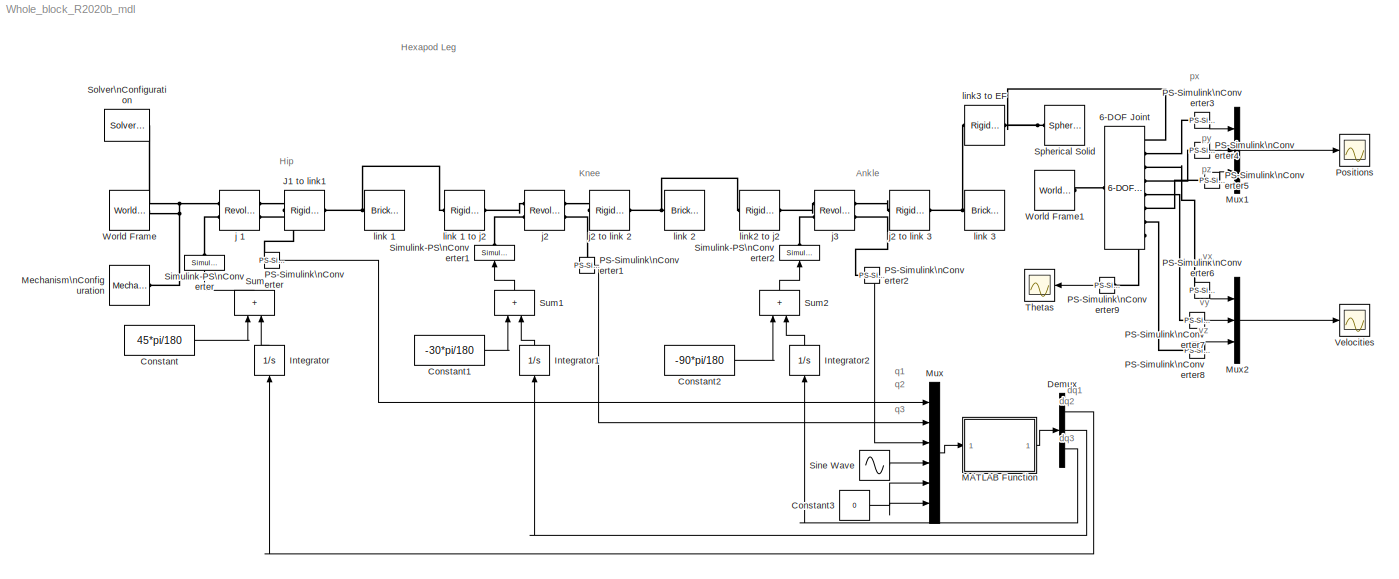
MODEL Whole_block_R2020b_mdl
KIND model
BLOCK [Reference] 6-DOF Joint  REF=sm_lib/Joints/6-DOF Joint
  CompositeWrenchDir = FollowerOnBase
  CompositeWrenchFrame = BaseFrame
  JointMode = Normal
  LogSimulationData = off
  Ports = [0, 0, 0, 0, 0, 1, 8]
  PxDampingCoefficient = 0
  PxDampingCoefficientUnits = N/(m/s)
  PxDampingCoefficient_conf = compiletime
  PxEquilibriumPosition = 0
  PxEquilibriumPositionUnits = m
  PxEquilibriumPosition_conf = compiletime
  PxLowerLimitBound = -1
  PxLowerLimitBoundUnits = m
  PxLowerLimitBound_conf = compiletime
  PxLowerLimitDamping = 1e3
  PxLowerLimitDampingUnits = N/(m/s)
  PxLowerLimitDamping_conf = compiletime
  PxLowerLimitSpecify = off
  PxLowerLimitStiffness = 1e6
  PxLowerLimitStiffnessUnits = N/m
  PxLowerLimitStiffness_conf = compiletime
  PxLowerLimitTransitionRegionWidth = 1e-4
  PxLowerLimitTransitionRegionWidthUnits = m
  PxLowerLimitTransitionRegionWidth_conf = compiletime
  PxMotionActuationMode = ComputedMotion
  PxPositionTargetPriority = High
  PxPositionTargetSpecify = off
  PxPositionTargetValue = 0
  PxPositionTargetValueUnits = m
  PxPositionTargetValue_conf = compiletime
  PxSenseAcceleration = off
  PxSenseLowerLimitTorqueForce = off
  PxSensePosition = on
  PxSenseTorqueForce = off
  PxSenseUpperLimitTorqueForce = off
  PxSenseVelocity = on
  PxSpringStiffness = 0
  PxSpringStiffnessUnits = N/m
  PxSpringStiffness_conf = compiletime
  PxTorqueActuationMode = NoTorque
  PxUpperLimitBound = 1
  PxUpperLimitBoundUnits = m
  PxUpperLimitBound_conf = compiletime
  PxUpperLimitDamping = 1e3
  PxUpperLimitDampingUnits = N/(m/s)
  PxUpperLimitDamping_conf = compiletime
  PxUpperLimitSpecify = off
  PxUpperLimitStiffness = 1e6
  PxUpperLimitStiffnessUnits = N/m
  PxUpperLimitStiffness_conf = compiletime
  PxUpperLimitTransitionRegionWidth = 1e-4
  PxUpperLimitTransitionRegionWidthUnits = m
  PxUpperLimitTransitionRegionWidth_conf = compiletime
  PxVelocityTargetPriority = High
  PxVelocityTargetSpecify = off
  PxVelocityTargetValue = 0
  PxVelocityTargetValueUnits = m/s
  PxVelocityTargetValue_conf = compiletime
  PyDampingCoefficient = 0
  PyDampingCoefficientUnits = N/(m/s)
  PyDampingCoefficient_conf = compiletime
  PyEquilibriumPosition = 0
  PyEquilibriumPositionUnits = m
  PyEquilibriumPosition_conf = compiletime
  PyLowerLimitBound = -1
  PyLowerLimitBoundUnits = m
  PyLowerLimitBound_conf = compiletime
  PyLowerLimitDamping = 1e3
  PyLowerLimitDampingUnits = N/(m/s)
  PyLowerLimitDamping_conf = compiletime
  PyLowerLimitSpecify = off
  PyLowerLimitStiffness = 1e6
  PyLowerLimitStiffnessUnits = N/m
  PyLowerLimitStiffness_conf = compiletime
  PyLowerLimitTransitionRegionWidth = 1e-4
  PyLowerLimitTransitionRegionWidthUnits = m
  PyLowerLimitTransitionRegionWidth_conf = compiletime
  PyMotionActuationMode = ComputedMotion
  PyPositionTargetPriority = High
  PyPositionTargetSpecify = off
  PyPositionTargetValue = 0
  PyPositionTargetValueUnits = m
  PyPositionTargetValue_conf = compiletime
  PySenseAcceleration = off
  PySenseLowerLimitTorqueForce = off
  PySensePosition = on
  PySenseTorqueForce = off
  PySenseUpperLimitTorqueForce = off
  PySenseVelocity = on
  PySpringStiffness = 0
  PySpringStiffnessUnits = N/m
  PySpringStiffness_conf = compiletime
  PyTorqueActuationMode = NoTorque
  PyUpperLimitBound = 1
  PyUpperLimitBoundUnits = m
  PyUpperLimitBound_conf = compiletime
  PyUpperLimitDamping = 1e3
  PyUpperLimitDampingUnits = N/(m/s)
  PyUpperLimitDamping_conf = compiletime
  PyUpperLimitSpecify = off
  PyUpperLimitStiffness = 1e6
  PyUpperLimitStiffnessUnits = N/m
  PyUpperLimitStiffness_conf = compiletime
  PyUpperLimitTransitionRegionWidth = 1e-4
  PyUpperLimitTransitionRegionWidthUnits = m
  PyUpperLimitTransitionRegionWidth_conf = compiletime
  PyVelocityTargetPriority = High
  PyVelocityTargetSpecify = off
  PyVelocityTargetValue = 0
  PyVelocityTargetValueUnits = m/s
  PyVelocityTargetValue_conf = compiletime
  PzDampingCoefficient = 0
  PzDampingCoefficientUnits = N/(m/s)
  PzDampingCoefficient_conf = compiletime
  PzEquilibriumPosition = 0
  PzEquilibriumPositionUnits = m
  PzEquilibriumPosition_conf = compiletime
  PzLowerLimitBound = -1
  PzLowerLimitBoundUnits = m
  PzLowerLimitBound_conf = compiletime
  PzLowerLimitDamping = 1e3
  PzLowerLimitDampingUnits = N/(m/s)
  PzLowerLimitDamping_conf = compiletime
  PzLowerLimitSpecify = off
  PzLowerLimitStiffness = 1e6
  PzLowerLimitStiffnessUnits = N/m
  PzLowerLimitStiffness_conf = compiletime
  PzLowerLimitTransitionRegionWidth = 1e-4
  PzLowerLimitTransitionRegionWidthUnits = m
  PzLowerLimitTransitionRegionWidth_conf = compiletime
  PzMotionActuationMode = ComputedMotion
  PzPositionTargetPriority = High
  PzPositionTargetSpecify = off
  PzPositionTargetValue = 0
  PzPositionTargetValueUnits = m
  PzPositionTargetValue_conf = compiletime
  PzSenseAcceleration = off
  PzSenseLowerLimitTorqueForce = off
  PzSensePosition = on
  PzSenseTorqueForce = off
  PzSenseUpperLimitTorqueForce = off
  PzSenseVelocity = on
  PzSpringStiffness = 0
  PzSpringStiffnessUnits = N/m
  PzSpringStiffness_conf = compiletime
  PzTorqueActuationMode = NoTorque
  PzUpperLimitBound = 1
  PzUpperLimitBoundUnits = m
  PzUpperLimitBound_conf = compiletime
  PzUpperLimitDamping = 1e3
  PzUpperLimitDampingUnits = N/(m/s)
  PzUpperLimitDamping_conf = compiletime
  PzUpperLimitSpecify = off
  PzUpperLimitStiffness = 1e6
  PzUpperLimitStiffnessUnits = N/m
  PzUpperLimitStiffness_conf = compiletime
  PzUpperLimitTransitionRegionWidth = 1e-4
  PzUpperLimitTransitionRegionWidthUnits = m
  PzUpperLimitTransitionRegionWidth_conf = compiletime
  PzVelocityTargetPriority = High
  PzVelocityTargetSpecify = off
  PzVelocityTargetValue = 0
  PzVelocityTargetValueUnits = m/s
  PzVelocityTargetValue_conf = compiletime
  SID = 114
  SenseConstraintForce = off
  SenseConstraintForceX = off
  SenseConstraintForceY = off
  SenseConstraintForceZ = off
  SenseConstraintTorque = off
  SenseConstraintTorqueX = off
  SenseConstraintTorqueY = off
  SenseConstraintTorqueZ = off
  SenseTotalForce = off
  SenseTotalForceX = off
  SenseTotalForceY = off
  SenseTotalForceZ = off
  SenseTotalTorque = off
  SenseTotalTorqueX = off
  SenseTotalTorqueY = off
  SenseTotalTorqueZ = off
  SourceBlock = sm_lib/Joints/6-DOF Joint
  SourceType = 6-DOF Joint
  SphActuateTorque = off
  SphActuateTorqueX = off
  SphActuateTorqueY = off
  SphActuateTorqueZ = off
  SphActuationFrame = BaseFrame
  SphDampingCoefficient = 0
  SphDampingCoefficientUnits = N*m/(deg/s)
  SphDampingCoefficient_conf = compiletime
  SphEqPosBaseAlignAxisA = +Y
  SphEqPosBaseAlignAxisB = +Z
  SphEqPosFollAlignAxisA = +X
  SphEqPosFollAlignAxisB = +Y
  SphEqPosQuaternion = [1 0 0 0]
  SphEqPosQuaternion_conf = compiletime
  SphEqPosRotationAngle = 0.0
  SphEqPosRotationAngleUnits = deg
  SphEqPosRotationAngle_conf = compiletime
  SphEqPosRotationArbitraryAxis = [0 0 1]
  SphEqPosRotationArbitraryAxis_conf = compiletime
  SphEqPosRotationMatrix = [1 0 0; 0 1 0; 0 0 1]
  SphEqPosRotationMatrix_conf = compiletime
  SphEqPosRotationMethod = None
  SphEqPosRotationSequence = XYX
  SphEqPosRotationSequenceAngles = [0 0 0]
  SphEqPosRotationSequenceAnglesUnits = deg
  SphEqPosRotationSequenceAngles_conf = compiletime
  SphEqPosRotationSequenceAxes = FollowerAxes
  SphEqPosRotationStandardAxis = +Z
  SphLowerLimitBound = 15
  SphLowerLimitBoundUnits = deg
  SphLowerLimitBound_conf = compiletime
  SphLowerLimitDamping = 10
  SphLowerLimitDampingUnits = N*m/(deg/s)
  SphLowerLimitDamping_conf = compiletime
  SphLowerLimitSpecify = off
  SphLowerLimitStiffness = 1e4
  SphLowerLimitStiffnessUnits = N*m/deg
  SphLowerLimitStiffness_conf = compiletime
  SphLowerLimitTransitionRegionWidth = 0.1
  SphLowerLimitTransitionRegionWidthUnits = deg
  SphLowerLimitTransitionRegionWidth_conf = compiletime
  SphMotionActuationMode = ComputedMotion
  SphPositionTargetBaseAlignAxisA = +Y
  SphPositionTargetBaseAlignAxisB = +Z
  SphPositionTargetFollAlignAxisA = +X
  SphPositionTargetFollAlignAxisB = +Y
  SphPositionTargetPriority = High
  SphPositionTargetQuaternion = [1 0 0 0]
  SphPositionTargetQuaternion_conf = compiletime
  SphPositionTargetRotationAngle = 0.0
  SphPositionTargetRotationAngleUnits = deg
  SphPositionTargetRotationAngle_conf = compiletime
  SphPositionTargetRotationArbitraryAxis = [0 0 1]
  SphPositionTargetRotationArbitraryAxis_conf = compiletime
  SphPositionTargetRotationMatrix = [1 0 0; 0 1 0; 0 0 1]
  SphPositionTargetRotationMatrix_conf = compiletime
  SphPositionTargetRotationMethod = None
  SphPositionTargetRotationSequence = XYX
  SphPositionTargetRotationSequenceAngles = [0 0 0]
  SphPositionTargetRotationSequenceAnglesUnits = deg
  SphPositionTargetRotationSequenceAngles_conf = compiletime
  SphPositionTargetRotationSequenceAxes = FollowerAxes
  SphPositionTargetRotationStandardAxis = +Z
  SphPositionTargetSpecify = off
  SphSenseAcceleration = off
  SphSenseAccelerationX = off
  SphSenseAccelerationY = off
  SphSenseAccelerationZ = off
  SphSenseLowerLimitTorqueMag = off
  SphSensePosition = on
  SphSenseTorqueForce = off
  SphSenseTorqueX = off
  SphSenseTorqueY = off
  SphSenseTorqueZ = off
  SphSenseUpperLimitTorqueMag = off
  SphSenseVelocity = off
  SphSenseVelocityX = off
  SphSenseVelocityY = off
  SphSenseVelocityZ = off
  SphSensingFrame = BaseFrame
  SphSpringStiffness = 0
  SphSpringStiffnessUnits = N*m/deg
  SphSpringStiffness_conf = compiletime
  SphTorqueActuationMode = NoTorque
  SphUpperLimitBound = 45
  SphUpperLimitBoundUnits = deg
  SphUpperLimitBound_conf = compiletime
  SphUpperLimitDamping = 10
  SphUpperLimitDampingUnits = N*m/(deg/s)
  SphUpperLimitDamping_conf = compiletime
  SphUpperLimitSpecify = off
  SphUpperLimitStiffness = 1e4
  SphUpperLimitStiffnessUnits = N*m/deg
  SphUpperLimitStiffness_conf = compiletime
  SphUpperLimitTransitionRegionWidth = 0.1
  SphUpperLimitTransitionRegionWidthUnits = deg
  SphUpperLimitTransitionRegionWidth_conf = compiletime
  SphVelocityTargetInFollowerFrame = on
  SphVelocityTargetPriority = High
  SphVelocityTargetSpecify = off
  SphVelocityTargetValue = [0 0 0]
  SphVelocityTargetValueUnits = deg/s
  SphVelocityTargetValue_conf = compiletime
BLOCK [Constant] Constant
  SID = 115
  Value = 45*pi/180
BLOCK [Constant] Constant1
  SID = 116
  Value = -30*pi/180
BLOCK [Constant] Constant2
  SID = 117
  Value = -90*pi/180
BLOCK [Constant] Constant3
  SID = 118
  Value = 0
BLOCK [Demux] Demux
  Outputs = 3
  Ports = [1, 3]
  SID = 119
BLOCK [Integrator] Integrator
  NameLocation = right
  Ports = [1, 1]
  SID = 120
BLOCK [Integrator] Integrator1
  NameLocation = right
  Ports = [1, 1]
  SID = 121
BLOCK [Integrator] Integrator2
  NameLocation = right
  Ports = [1, 1]
  SID = 122
BLOCK [Reference] J1 to link1  REF=sm_lib/Frames and\nTransforms/Rigid\nTransform
  BaseAlignAxisA = +Y
  BaseAlignAxisB = +Z
  FollAlignAxisA = +X
  FollAlignAxisB = +Y
  LogSimulationData = off
  Ports = [0, 0, 0, 0, 0, 1, 1]
  Quaternion = [1 0 0 0]
  Quaternion_conf = compiletime
  RotationAngle = 0.0
  RotationAngleUnits = deg
  RotationAngle_conf = compiletime
  RotationArbitraryAxis = [0 0 1]
  RotationArbitraryAxis_conf = compiletime
  RotationMatrix = [1 0 0; 0 1 0; 0 0 1]
  RotationMatrix_conf = compiletime
  RotationMethod = None
  RotationSequence = XYX
  RotationSequenceAngles = [0 0 0]
  RotationSequenceAnglesUnits = deg
  RotationSequenceAngles_conf = compiletime
  RotationSequenceAxes = FollowerAxes
  RotationStandardAxis = +Z
  SID = 123
  SourceBlock = sm_lib/Frames and\nTransforms/Rigid\nTransform
  SourceType = Rigid\nTransform
  TranslationCartesianOffset = [.025 0 0]
  TranslationCartesianOffsetUnits = m
  TranslationCartesianOffset_conf = compiletime
  TranslationMethod = Cartesian
  TranslationROffset = 0
  TranslationROffsetUnits = m
  TranslationROffset_conf = compiletime
  TranslationStandardAxis = +Z
  TranslationStandardOffset = 0
  TranslationStandardOffsetUnits = m
  TranslationStandardOffset_conf = compiletime
  TranslationThetaOffset = 0
  TranslationThetaOffsetUnits = deg
  TranslationThetaOffset_conf = compiletime
  TranslationZOffset = 0
  TranslationZOffsetUnits = m
  TranslationZOffset_conf = compiletime
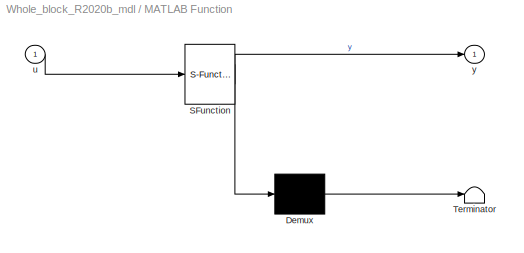
BLOCK [SubSystem] MATLAB Function
  ErrorFcn = Stateflow.Translate.translate
  PermitHierarchicalResolution = ExplicitOnly
  Ports = [1, 1]
  SFBlockType = MATLAB Function
  SID = 124
  TreatAsAtomicUnit = on
BLOCK [Demux] MATLAB Function/ Demux 
  Outputs = 1
  Ports = [1, 1]
  SID = 124::33
BLOCK [S-Function] MATLAB Function/ SFunction 
  EnableBusSupport = on
  FunctionName = sf_sfun
  PortCounts = [1 2]
  Ports = [1, 2]
  SFcnIsStateOwnerBlock = off
  SFunctionDeploymentMode = off
  SID = 124::32
  Tag = Stateflow S-Function 2
BLOCK [Terminator] MATLAB Function/ Terminator 
  SID = 124::34
BLOCK [Inport] MATLAB Function/u
  SID = 124::1
BLOCK [Outport] MATLAB Function/y
  SID = 124::5
BLOCK [Reference] Mechanism\nConfiguration  REF=sm_lib/Utilities/Mechanism\nConfiguration
  GravityVector = [0  0 -9.80665]
  GravityVectorUnits = m/s^2
  GravityVector_conf = compiletime
  JointModeTransitionNonlinearIterations = 2
  LinearizationDelta = 0.001
  LogSimulationData = off
  Ports = [0, 0, 0, 0, 0, 0, 1]
  SID = 125
  SourceBlock = sm_lib/Utilities/Mechanism\nConfiguration
  SourceType = Mechanism\nConfiguration
  UniformGravity = Constant
BLOCK [Mux] Mux
  DisplayOption = bar
  Inputs = 6
  Ports = [6, 1]
  SID = 126
BLOCK [Mux] Mux1
  DisplayOption = bar
  Inputs = 3
  Ports = [3, 1]
  SID = 127
BLOCK [Mux] Mux2
  DisplayOption = bar
  Inputs = 3
  Ports = [3, 1]
  SID = 128
BLOCK [Reference] PS-Simulink\nConverter  REF=nesl_utility/PS-Simulink\nConverter
  AffineConversion = off
  Frequencies = []
  LeftPortType = input
  PhysicalDomain = network_engine_domain
  Ports = [0, 1, 0, 0, 0, 1]
  PseudoPeriodic = off
  RTWMemSecDataConstants = Inherit from model
  RTWMemSecDataInternal = Inherit from model
  RTWMemSecDataParameters = Inherit from model
  RTWMemSecFuncExecute = Inherit from model
  RTWMemSecFuncInitTerm = Inherit from model
  RightPortType = output
  SID = 129
  SourceBlock = nesl_utility/PS-Simulink\nConverter
  SourceType = PS-Simulink\nConverter
  SubClassName = ps_output
  Unit = rad
  VectorFormat = inherit
BLOCK [Reference] PS-Simulink\nConverter1  REF=nesl_utility/PS-Simulink\nConverter
  AffineConversion = off
  Frequencies = []
  LeftPortType = input
  PhysicalDomain = network_engine_domain
  Ports = [0, 1, 0, 0, 0, 1]
  PseudoPeriodic = off
  RTWMemSecDataConstants = Inherit from model
  RTWMemSecDataInternal = Inherit from model
  RTWMemSecDataParameters = Inherit from model
  RTWMemSecFuncExecute = Inherit from model
  RTWMemSecFuncInitTerm = Inherit from model
  RightPortType = output
  SID = 130
  SourceBlock = nesl_utility/PS-Simulink\nConverter
  SourceType = PS-Simulink\nConverter
  SubClassName = ps_output
  Unit = rad
  VectorFormat = inherit
BLOCK [Reference] PS-Simulink\nConverter2  REF=nesl_utility/PS-Simulink\nConverter
  AffineConversion = off
  Frequencies = []
  LeftPortType = input
  PhysicalDomain = network_engine_domain
  Ports = [0, 1, 0, 0, 0, 1]
  PseudoPeriodic = off
  RTWMemSecDataConstants = Inherit from model
  RTWMemSecDataInternal = Inherit from model
  RTWMemSecDataParameters = Inherit from model
  RTWMemSecFuncExecute = Inherit from model
  RTWMemSecFuncInitTerm = Inherit from model
  RightPortType = output
  SID = 131
  SourceBlock = nesl_utility/PS-Simulink\nConverter
  SourceType = PS-Simulink\nConverter
  SubClassName = ps_output
  Unit = rad
  VectorFormat = inherit
BLOCK [Reference] PS-Simulink\nConverter3  REF=nesl_utility/PS-Simulink\nConverter
  AffineConversion = off
  Frequencies = []
  LeftPortType = input
  PhysicalDomain = network_engine_domain
  Ports = [0, 1, 0, 0, 0, 1]
  PseudoPeriodic = off
  RTWMemSecDataConstants = Inherit from model
  RTWMemSecDataInternal = Inherit from model
  RTWMemSecDataParameters = Inherit from model
  RTWMemSecFuncExecute = Inherit from model
  RTWMemSecFuncInitTerm = Inherit from model
  RightPortType = output
  SID = 132
  SourceBlock = nesl_utility/PS-Simulink\nConverter
  SourceType = PS-Simulink\nConverter
  SubClassName = ps_output
  Unit = inherit
  VectorFormat = 1-D array
BLOCK [Reference] PS-Simulink\nConverter4  REF=nesl_utility/PS-Simulink\nConverter
  AffineConversion = off
  Frequencies = []
  LeftPortType = input
  PhysicalDomain = network_engine_domain
  Ports = [0, 1, 0, 0, 0, 1]
  PseudoPeriodic = off
  RTWMemSecDataConstants = Inherit from model
  RTWMemSecDataInternal = Inherit from model
  RTWMemSecDataParameters = Inherit from model
  RTWMemSecFuncExecute = Inherit from model
  RTWMemSecFuncInitTerm = Inherit from model
  RightPortType = output
  SID = 133
  SourceBlock = nesl_utility/PS-Simulink\nConverter
  SourceType = PS-Simulink\nConverter
  SubClassName = ps_output
  Unit = inherit
  VectorFormat = 1-D array
BLOCK [Reference] PS-Simulink\nConverter5  REF=nesl_utility/PS-Simulink\nConverter
  AffineConversion = off
  Frequencies = []
  LeftPortType = input
  PhysicalDomain = network_engine_domain
  Ports = [0, 1, 0, 0, 0, 1]
  PseudoPeriodic = off
  RTWMemSecDataConstants = Inherit from model
  RTWMemSecDataInternal = Inherit from model
  RTWMemSecDataParameters = Inherit from model
  RTWMemSecFuncExecute = Inherit from model
  RTWMemSecFuncInitTerm = Inherit from model
  RightPortType = output
  SID = 134
  SourceBlock = nesl_utility/PS-Simulink\nConverter
  SourceType = PS-Simulink\nConverter
  SubClassName = ps_output
  Unit = inherit
  VectorFormat = 1-D array
BLOCK [Reference] PS-Simulink\nConverter6  REF=nesl_utility/PS-Simulink\nConverter
  AffineConversion = off
  Frequencies = []
  LeftPortType = input
  PhysicalDomain = network_engine_domain
  Ports = [0, 1, 0, 0, 0, 1]
  PseudoPeriodic = off
  RTWMemSecDataConstants = Inherit from model
  RTWMemSecDataInternal = Inherit from model
  RTWMemSecDataParameters = Inherit from model
  RTWMemSecFuncExecute = Inherit from model
  RTWMemSecFuncInitTerm = Inherit from model
  RightPortType = output
  SID = 135
  SourceBlock = nesl_utility/PS-Simulink\nConverter
  SourceType = PS-Simulink\nConverter
  SubClassName = ps_output
  Unit = inherit
  VectorFormat = inherit
BLOCK [Reference] PS-Simulink\nConverter7  REF=nesl_utility/PS-Simulink\nConverter
  AffineConversion = off
  Frequencies = []
  LeftPortType = input
  PhysicalDomain = network_engine_domain
  Ports = [0, 1, 0, 0, 0, 1]
  PseudoPeriodic = off
  RTWMemSecDataConstants = Inherit from model
  RTWMemSecDataInternal = Inherit from model
  RTWMemSecDataParameters = Inherit from model
  RTWMemSecFuncExecute = Inherit from model
  RTWMemSecFuncInitTerm = Inherit from model
  RightPortType = output
  SID = 136
  SourceBlock = nesl_utility/PS-Simulink\nConverter
  SourceType = PS-Simulink\nConverter
  SubClassName = ps_output
  Unit = inherit
  VectorFormat = inherit
BLOCK [Reference] PS-Simulink\nConverter8  REF=nesl_utility/PS-Simulink\nConverter
  AffineConversion = off
  Frequencies = []
  LeftPortType = input
  PhysicalDomain = network_engine_domain
  Ports = [0, 1, 0, 0, 0, 1]
  PseudoPeriodic = off
  RTWMemSecDataConstants = Inherit from model
  RTWMemSecDataInternal = Inherit from model
  RTWMemSecDataParameters = Inherit from model
  RTWMemSecFuncExecute = Inherit from model
  RTWMemSecFuncInitTerm = Inherit from model
  RightPortType = output
  SID = 137
  SourceBlock = nesl_utility/PS-Simulink\nConverter
  SourceType = PS-Simulink\nConverter
  SubClassName = ps_output
  Unit = inherit
  VectorFormat = inherit
BLOCK [Reference] PS-Simulink\nConverter9  REF=nesl_utility/PS-Simulink\nConverter
  AffineConversion = off
  Frequencies = []
  LeftPortType = input
  PhysicalDomain = network_engine_domain
  Ports = [0, 1, 0, 0, 0, 1]
  PseudoPeriodic = off
  RTWMemSecDataConstants = Inherit from model
  RTWMemSecDataInternal = Inherit from model
  RTWMemSecDataParameters = Inherit from model
  RTWMemSecFuncExecute = Inherit from model
  RTWMemSecFuncInitTerm = Inherit from model
  RightPortType = output
  SID = 138
  SourceBlock = nesl_utility/PS-Simulink\nConverter
  SourceType = PS-Simulink\nConverter
  SubClassName = ps_output
  Unit = inherit
  VectorFormat = inherit
BLOCK [Scope] Positions
  Floating = off
  NumInputPorts = 1
  Ports = [1]
  SID = 139
  ScopeSpecificationString = Simulink.scopes.TimeScopeBlockCfg('CurrentConfiguration', extmgr.ConfigurationSet(extmgr.Configuration('Core','General UI',true),extmgr.Configuration('Core','Source UI',true),extmgr.Configuration('Sources','WiredSimulink',true,'DataLoggingVariableName','ScopeData1'),extmgr.Configuration('Visuals','Time Domain',true,'SerializedDisplays',{struct('MinYLimReal','-.17','MaxYLimReal','.17','YLabelReal',...<+1828ch>
BLOCK [Reference] Simulink-PS\nConverter  REF=nesl_utility/Simulink-PS\nConverter
  AffineConversion = off
  FilteringAndDerivatives = filter
  Frequencies = []
  InputFilterTimeConstant = 0.001
  LeftPortType = input
  NameLocation = right
  NoiseDistribution = none
  NoiseParameters = []
  PhysicalDomain = network_engine_domain
  Ports = [1, 0, 0, 0, 0, 0, 1]
  PseudoPeriodic = off
  RTWMemSecDataConstants = Inherit from model
  RTWMemSecDataInternal = Inherit from model
  RTWMemSecDataParameters = Inherit from model
  RTWMemSecFuncExecute = Inherit from model
  RTWMemSecFuncInitTerm = Inherit from model
  RightPortType = output
  SID = 142
  SimscapeFilterOrder = 2
  SourceBlock = nesl_utility/Simulink-PS\nConverter
  SourceType = Simulink-PS\nConverter
  SubClassName = ps_input
  UdotUserProvided = 0
  Unit = 1
BLOCK [Reference] Simulink-PS\nConverter1  REF=nesl_utility/Simulink-PS\nConverter
  AffineConversion = off
  FilteringAndDerivatives = filter
  Frequencies = []
  InputFilterTimeConstant = 0.001
  LeftPortType = input
  NameLocation = right
  NoiseDistribution = none
  NoiseParameters = []
  PhysicalDomain = network_engine_domain
  Ports = [1, 0, 0, 0, 0, 0, 1]
  PseudoPeriodic = off
  RTWMemSecDataConstants = Inherit from model
  RTWMemSecDataInternal = Inherit from model
  RTWMemSecDataParameters = Inherit from model
  RTWMemSecFuncExecute = Inherit from model
  RTWMemSecFuncInitTerm = Inherit from model
  RightPortType = output
  SID = 143
  SimscapeFilterOrder = 2
  SourceBlock = nesl_utility/Simulink-PS\nConverter
  SourceType = Simulink-PS\nConverter
  SubClassName = ps_input
  UdotUserProvided = 2
  Unit = 1
BLOCK [Reference] Simulink-PS\nConverter2  REF=nesl_utility/Simulink-PS\nConverter
  AffineConversion = off
  FilteringAndDerivatives = filter
  Frequencies = []
  InputFilterTimeConstant = 0.001
  LeftPortType = input
  NameLocation = right
  NoiseDistribution = none
  NoiseParameters = []
  PhysicalDomain = network_engine_domain
  Ports = [1, 0, 0, 0, 0, 0, 1]
  PseudoPeriodic = off
  RTWMemSecDataConstants = Inherit from model
  RTWMemSecDataInternal = Inherit from model
  RTWMemSecDataParameters = Inherit from model
  RTWMemSecFuncExecute = Inherit from model
  RTWMemSecFuncInitTerm = Inherit from model
  RightPortType = output
  SID = 144
  SimscapeFilterOrder = 2
  SourceBlock = nesl_utility/Simulink-PS\nConverter
  SourceType = Simulink-PS\nConverter
  SubClassName = ps_input
  UdotUserProvided = 2
  Unit = 1
BLOCK [Sin] Sine Wave
  Amplitude = 120
  Frequency = pi
  Ports = [0, 1]
  SID = 145
  SampleTime = 0
BLOCK [Reference] Solver\nConfiguration  REF=nesl_utility/Solver\nConfiguration
  AbsTol = 0.001
  AutomaticFiltering = on
  ComputeImpulses = off
  ConsistencyAbsTol = 0.001
  ConsistencyRelTol = 0.001
  ConsistencySolver = NEWTON_XTOL_AFTER_FTOL
  ConsistencyTolFactor = 0.001
  ConsistencyTolSource = GLOBAL
  DelaysMemoryBudget = 1024
  DoDC = off
  DoFixedCost = off
  EnableSwitchedLinearOptims = on
  EquationFormulation = NE_TIME_EF
  FilteringTimeConstant = 0.001
  FrequencyDomain = off
  FunctionEvalNumThread = 1
  Harmonics = []
  ImpulseIterations = 2
  IndexReductionMethod = DerivativeReplacement
  LeftPortType = input
  LinearAlgebra = auto
  LinearAlgebraNumThread = 0
  LocalSolverChoice = NE_BACKWARD_EULER_ADVANCER
  LocalSolverSampleTime = 0.001
  MaxModeIter = 2
  MaxNonlinIter = 3
  MinStep = 1e-09
  MultibodyLocalSolverChoice = ODE1
  MultibodyLocalSolverSampleTime = 0.001
  MultibodyUseLocalSolver = off
  NumHomotopyIterations = 100
  PartitionMemoryBudget = 1024
  PartitionMethod = ROBUST
  PartitionStorageMethod = AS_NEEDED
  PhasorMode = off
  PhasorModeNumHarmonics = 1
  PhysicalDomain = network_engine_domain
  Ports = [0, 0, 0, 0, 0, 0, 1]
  Profile = off
  RTWMemSecDataConstants = Inherit from model
  RTWMemSecDataInternal = Inherit from model
  RTWMemSecDataParameters = Inherit from model
  RTWMemSecFuncExecute = Inherit from model
  RTWMemSecFuncInitTerm = Inherit from model
  RelTol = 0.001
  ResidualTolerance = 1e-09
  ResolveIndetEquations = on
  RevertToSquareIcSolve = off
  RightPortType = generic
  SID = 146
  SimulateNoise = off
  SourceBlock = nesl_utility/Solver\nConfiguration
  SourceType = Solver\nConfiguration
  SubClassName = solver
  ToWorkspace = off
  Tones = []
  UseCCode = off
  UseLocalSampling = off
  UseLocalSolver = off
BLOCK [Reference] Spherical Solid  REF=sm_lib/Body Elements/Spherical Solid
  BasedOnType = Density
  CenterOfMass = [0 0 0]
  CenterOfMassUnits = m
  CenterOfMass_conf = compiletime
  Density = 1000
  DensityUnits = kg/m^3
  Density_conf = compiletime
  DoExposeReferenceFrame = on
  ExportEntireGeometry = off
  GraphicAmbientColor = [0.15 0.15 0.15 1.0]
  GraphicAmbientColor_conf = compiletime
  GraphicDiffuseColor = [0.2 0.4 0.0]
  GraphicDiffuseColor_conf = compiletime
  GraphicEmissiveColor = [0.0 0.0 0.0 1.0]
  GraphicEmissiveColor_conf = compiletime
  GraphicOpacity = 1.0
  GraphicOpacity_conf = compiletime
  GraphicShininess = 75
  GraphicShininess_conf = compiletime
  GraphicSpecularColor = [0.5 0.5 0.5 1.0]
  GraphicSpecularColor_conf = compiletime
  GraphicType = FromGeometry
  GraphicVisPropType = SimpleVisualProperties
  InertiaType = CalculateFromGeometry
  LogSimulationData = off
  MarkerShape = Sphere
  MarkerSize = 10
  MarkerSize_conf = compiletime
  Mass = 1
  MassUnits = kg
  Mass_conf = compiletime
  MomentsOfInertia = [1 1 1]
  MomentsOfInertiaUnits = kg*m^2
  MomentsOfInertia_conf = compiletime
  Ports = [0, 0, 0, 0, 0, 0, 1]
  ProductsOfInertia = [0 0 0]
  ProductsOfInertiaUnits = kg*m^2
  ProductsOfInertia_conf = compiletime
  SID = 147
  SerializedExposedGeometries = <exposedGeometries/>
  SerializedFrames = <Frames/>
  SourceBlock = sm_lib/Body Elements/Spherical Solid
  SourceType = Spherical Solid
  SphereRadius = 0.006
  SphereRadiusUnits = m
  SphereRadius_conf = compiletime
BLOCK [Sum] Sum
  IconShape = rectangular
  Inputs = |++
  NameLocation = right
  Ports = [2, 1]
  SID = 148
BLOCK [Sum] Sum1
  IconShape = rectangular
  Inputs = |++
  NameLocation = right
  Ports = [2, 1]
  SID = 149
BLOCK [Sum] Sum2
  IconShape = rectangular
  Inputs = |++
  NameLocation = right
  Ports = [2, 1]
  SID = 150
BLOCK [Scope] Thetas
  Floating = off
  NumInputPorts = 1
  Ports = [1]
  SID = 141
  ScopeSpecificationString = Simulink.scopes.TimeScopeBlockCfg('CurrentConfiguration', extmgr.ConfigurationSet(extmgr.Configuration('Core','General UI',true),extmgr.Configuration('Core','Source UI',true),extmgr.Configuration('Sources','WiredSimulink',true),extmgr.Configuration('Visuals','Time Domain',true,'SerializedDisplays',{struct('MinYLimReal','-0.84355','MaxYLimReal','0.58136','YLabelReal','','MinYLimMag','0.00000','MaxY...<+1452ch>
BLOCK [Scope] Velocities
  Floating = off
  NumInputPorts = 1
  Ports = [1]
  SID = 140
  ScopeSpecificationString = Simulink.scopes.TimeScopeBlockCfg('CurrentConfiguration', extmgr.ConfigurationSet(extmgr.Configuration('Core','General UI',true),extmgr.Configuration('Core','Source UI',true),extmgr.Configuration('Sources','WiredSimulink',true,'DataLoggingVariableName','ScopeData2'),extmgr.Configuration('Visuals','Time Domain',true,'SerializedDisplays',{struct('MinYLimReal','-0.14999','MaxYLimReal','0.15013','YLab...<+1872ch>
BLOCK [Reference] World Frame  REF=sm_lib/Frames and\nTransforms/World Frame
  LogSimulationData = off
  Ports = [0, 0, 0, 0, 0, 0, 1]
  SID = 151
  SourceBlock = sm_lib/Frames and\nTransforms/World Frame
  SourceType = World Frame
BLOCK [Reference] World Frame1  REF=sm_lib/Frames and\nTransforms/World Frame
  LogSimulationData = off
  Ports = [0, 0, 0, 0, 0, 0, 1]
  SID = 152
  SourceBlock = sm_lib/Frames and\nTransforms/World Frame
  SourceType = World Frame
BLOCK [Reference] j 1  REF=sm_lib/Joints/Revolute Joint
  CompositeWrenchDir = FollowerOnBase
  CompositeWrenchFrame = BaseFrame
  DampingCoefficient = 0
  DampingCoefficientUnits = N*m/(deg/s)
  DampingCoefficient_conf = compiletime
  EquilibriumPosition = 0
  EquilibriumPositionUnits = deg
  EquilibriumPosition_conf = compiletime
  JointMode = Normal
  LogSimulationData = off
  LowerLimitBound = -90
  LowerLimitBoundUnits = deg
  LowerLimitBound_conf = compiletime
  LowerLimitDamping = 10
  LowerLimitDampingUnits = N*m/(deg/s)
  LowerLimitDamping_conf = compiletime
  LowerLimitSpecify = off
  LowerLimitStiffness = 1e4
  LowerLimitStiffnessUnits = N*m/deg
  LowerLimitStiffness_conf = compiletime
  LowerLimitTransitionRegionWidth = 0.1
  LowerLimitTransitionRegionWidthUnits = deg
  LowerLimitTransitionRegionWidth_conf = compiletime
  MotionActuationMode = InputMotion
  Ports = [0, 0, 0, 0, 0, 2, 2]
  PositionTargetPriority = High
  PositionTargetSpecify = off
  PositionTargetValue = 0
  PositionTargetValueUnits = deg
  PositionTargetValue_conf = compiletime
  SID = 153
  SenseAcceleration = off
  SenseConstraintForce = off
  SenseConstraintForceX = off
  SenseConstraintForceY = off
  SenseConstraintForceZ = off
  SenseConstraintTorque = off
  SenseConstraintTorqueX = off
  SenseConstraintTorqueY = off
  SenseConstraintTorqueZ = off
  SenseLowerLimitTorqueForce = off
  SensePosition = on
  SenseTorqueForce = off
  SenseTotalForce = off
  SenseTotalForceX = off
  SenseTotalForceY = off
  SenseTotalForceZ = off
  SenseTotalTorque = off
  SenseTotalTorqueX = off
  SenseTotalTorqueY = off
  SenseTotalTorqueZ = off
  SenseUpperLimitTorqueForce = off
  SenseVelocity = off
  SourceBlock = sm_lib/Joints/Revolute Joint
  SourceType = Revolute Joint
  SpringStiffness = 0
  SpringStiffnessUnits = N*m/deg
  SpringStiffness_conf = compiletime
  TorqueActuationMode = ComputedTorque
  UpperLimitBound = 90
  UpperLimitBoundUnits = deg
  UpperLimitBound_conf = compiletime
  UpperLimitDamping = 10
  UpperLimitDampingUnits = N*m/(deg/s)
  UpperLimitDamping_conf = compiletime
  UpperLimitSpecify = off
  UpperLimitStiffness = 1e4
  UpperLimitStiffnessUnits = N*m/deg
  UpperLimitStiffness_conf = compiletime
  UpperLimitTransitionRegionWidth = 0.1
  UpperLimitTransitionRegionWidthUnits = deg
  UpperLimitTransitionRegionWidth_conf = compiletime
  VelocityTargetPriority = High
  VelocityTargetSpecify = off
  VelocityTargetValue = 0
  VelocityTargetValueUnits = deg/s
  VelocityTargetValue_conf = compiletime
BLOCK [Reference] j2  REF=sm_lib/Joints/Revolute Joint
  CompositeWrenchDir = FollowerOnBase
  CompositeWrenchFrame = BaseFrame
  DampingCoefficient = 0
  DampingCoefficientUnits = N*m/(deg/s)
  DampingCoefficient_conf = compiletime
  EquilibriumPosition = 0
  EquilibriumPositionUnits = deg
  EquilibriumPosition_conf = compiletime
  JointMode = Normal
  LogSimulationData = off
  LowerLimitBound = -90
  LowerLimitBoundUnits = deg
  LowerLimitBound_conf = compiletime
  LowerLimitDamping = 10
  LowerLimitDampingUnits = N*m/(deg/s)
  LowerLimitDamping_conf = compiletime
  LowerLimitSpecify = off
  LowerLimitStiffness = 1e4
  LowerLimitStiffnessUnits = N*m/deg
  LowerLimitStiffness_conf = compiletime
  LowerLimitTransitionRegionWidth = 0.1
  LowerLimitTransitionRegionWidthUnits = deg
  LowerLimitTransitionRegionWidth_conf = compiletime
  MotionActuationMode = InputMotion
  Ports = [0, 0, 0, 0, 0, 2, 2]
  PositionTargetPriority = High
  PositionTargetSpecify = off
  PositionTargetValue = 0
  PositionTargetValueUnits = deg
  PositionTargetValue_conf = compiletime
  SID = 154
  SenseAcceleration = off
  SenseConstraintForce = off
  SenseConstraintForceX = off
  SenseConstraintForceY = off
  SenseConstraintForceZ = off
  SenseConstraintTorque = off
  SenseConstraintTorqueX = off
  SenseConstraintTorqueY = off
  SenseConstraintTorqueZ = off
  SenseLowerLimitTorqueForce = off
  SensePosition = on
  SenseTorqueForce = off
  SenseTotalForce = off
  SenseTotalForceX = off
  SenseTotalForceY = off
  SenseTotalForceZ = off
  SenseTotalTorque = off
  SenseTotalTorqueX = off
  SenseTotalTorqueY = off
  SenseTotalTorqueZ = off
  SenseUpperLimitTorqueForce = off
  SenseVelocity = off
  SourceBlock = sm_lib/Joints/Revolute Joint
  SourceType = Revolute Joint
  SpringStiffness = 0
  SpringStiffnessUnits = N*m/deg
  SpringStiffness_conf = compiletime
  TorqueActuationMode = ComputedTorque
  UpperLimitBound = 90
  UpperLimitBoundUnits = deg
  UpperLimitBound_conf = compiletime
  UpperLimitDamping = 10
  UpperLimitDampingUnits = N*m/(deg/s)
  UpperLimitDamping_conf = compiletime
  UpperLimitSpecify = off
  UpperLimitStiffness = 1e4
  UpperLimitStiffnessUnits = N*m/deg
  UpperLimitStiffness_conf = compiletime
  UpperLimitTransitionRegionWidth = 0.1
  UpperLimitTransitionRegionWidthUnits = deg
  UpperLimitTransitionRegionWidth_conf = compiletime
  VelocityTargetPriority = High
  VelocityTargetSpecify = off
  VelocityTargetValue = 0
  VelocityTargetValueUnits = deg/s
  VelocityTargetValue_conf = compiletime
BLOCK [Reference] j2 to link 2  REF=sm_lib/Frames and\nTransforms/Rigid\nTransform
  BaseAlignAxisA = +X
  BaseAlignAxisB = +Y
  FollAlignAxisA = +X
  FollAlignAxisB = +Z
  LogSimulationData = off
  Ports = [0, 0, 0, 0, 0, 1, 1]
  Quaternion = [1 0 0 0]
  Quaternion_conf = compiletime
  RotationAngle = 0.0
  RotationAngleUnits = deg
  RotationAngle_conf = compiletime
  RotationArbitraryAxis = [0 0 1]
  RotationArbitraryAxis_conf = compiletime
  RotationMatrix = [1 0 0; 0 1 0; 0 0 1]
  RotationMatrix_conf = compiletime
  RotationMethod = None
  RotationSequence = XYX
  RotationSequenceAngles = [0 0 0]
  RotationSequenceAnglesUnits = deg
  RotationSequenceAngles_conf = compiletime
  RotationSequenceAxes = FollowerAxes
  RotationStandardAxis = +Z
  SID = 155
  SourceBlock = sm_lib/Frames and\nTransforms/Rigid\nTransform
  SourceType = Rigid\nTransform
  TranslationCartesianOffset = [.05 0 0]
  TranslationCartesianOffsetUnits = m
  TranslationCartesianOffset_conf = compiletime
  TranslationMethod = Cartesian
  TranslationROffset = 0
  TranslationROffsetUnits = m
  TranslationROffset_conf = compiletime
  TranslationStandardAxis = +Z
  TranslationStandardOffset = 0
  TranslationStandardOffsetUnits = m
  TranslationStandardOffset_conf = compiletime
  TranslationThetaOffset = 0
  TranslationThetaOffsetUnits = deg
  TranslationThetaOffset_conf = compiletime
  TranslationZOffset = 0
  TranslationZOffsetUnits = m
  TranslationZOffset_conf = compiletime
BLOCK [Reference] j2 to link 3  REF=sm_lib/Frames and\nTransforms/Rigid\nTransform
  BaseAlignAxisA = +X
  BaseAlignAxisB = +Y
  FollAlignAxisA = +X
  FollAlignAxisB = +Z
  LogSimulationData = off
  Ports = [0, 0, 0, 0, 0, 1, 1]
  Quaternion = [1 0 0 0]
  Quaternion_conf = compiletime
  RotationAngle = 0.0
  RotationAngleUnits = deg
  RotationAngle_conf = compiletime
  RotationArbitraryAxis = [0 0 1]
  RotationArbitraryAxis_conf = compiletime
  RotationMatrix = [1 0 0; 0 1 0; 0 0 1]
  RotationMatrix_conf = compiletime
  RotationMethod = None
  RotationSequence = XYX
  RotationSequenceAngles = [0 0 0]
  RotationSequenceAnglesUnits = deg
  RotationSequenceAngles_conf = compiletime
  RotationSequenceAxes = FollowerAxes
  RotationStandardAxis = +Z
  SID = 156
  SourceBlock = sm_lib/Frames and\nTransforms/Rigid\nTransform
  SourceType = Rigid\nTransform
  TranslationCartesianOffset = [.05 0 0]
  TranslationCartesianOffsetUnits = m
  TranslationCartesianOffset_conf = compiletime
  TranslationMethod = Cartesian
  TranslationROffset = 0
  TranslationROffsetUnits = m
  TranslationROffset_conf = compiletime
  TranslationStandardAxis = +Z
  TranslationStandardOffset = 0
  TranslationStandardOffsetUnits = m
  TranslationStandardOffset_conf = compiletime
  TranslationThetaOffset = 0
  TranslationThetaOffsetUnits = deg
  TranslationThetaOffset_conf = compiletime
  TranslationZOffset = 0
  TranslationZOffsetUnits = m
  TranslationZOffset_conf = compiletime
BLOCK [Reference] j3  REF=sm_lib/Joints/Revolute Joint
  CompositeWrenchDir = FollowerOnBase
  CompositeWrenchFrame = BaseFrame
  DampingCoefficient = 0
  DampingCoefficientUnits = N*m/(deg/s)
  DampingCoefficient_conf = compiletime
  EquilibriumPosition = 0
  EquilibriumPositionUnits = deg
  EquilibriumPosition_conf = compiletime
  JointMode = Normal
  LogSimulationData = off
  LowerLimitBound = -90
  LowerLimitBoundUnits = deg
  LowerLimitBound_conf = compiletime
  LowerLimitDamping = 10
  LowerLimitDampingUnits = N*m/(deg/s)
  LowerLimitDamping_conf = compiletime
  LowerLimitSpecify = off
  LowerLimitStiffness = 1e4
  LowerLimitStiffnessUnits = N*m/deg
  LowerLimitStiffness_conf = compiletime
  LowerLimitTransitionRegionWidth = 0.1
  LowerLimitTransitionRegionWidthUnits = deg
  LowerLimitTransitionRegionWidth_conf = compiletime
  MotionActuationMode = InputMotion
  Ports = [0, 0, 0, 0, 0, 2, 2]
  PositionTargetPriority = High
  PositionTargetSpecify = off
  PositionTargetValue = 0
  PositionTargetValueUnits = deg
  PositionTargetValue_conf = compiletime
  SID = 157
  SenseAcceleration = off
  SenseConstraintForce = off
  SenseConstraintForceX = off
  SenseConstraintForceY = off
  SenseConstraintForceZ = off
  SenseConstraintTorque = off
  SenseConstraintTorqueX = off
  SenseConstraintTorqueY = off
  SenseConstraintTorqueZ = off
  SenseLowerLimitTorqueForce = off
  SensePosition = on
  SenseTorqueForce = off
  SenseTotalForce = off
  SenseTotalForceX = off
  SenseTotalForceY = off
  SenseTotalForceZ = off
  SenseTotalTorque = off
  SenseTotalTorqueX = off
  SenseTotalTorqueY = off
  SenseTotalTorqueZ = off
  SenseUpperLimitTorqueForce = off
  SenseVelocity = off
  SourceBlock = sm_lib/Joints/Revolute Joint
  SourceType = Revolute Joint
  SpringStiffness = 0
  SpringStiffnessUnits = N*m/deg
  SpringStiffness_conf = compiletime
  TorqueActuationMode = ComputedTorque
  UpperLimitBound = 90
  UpperLimitBoundUnits = deg
  UpperLimitBound_conf = compiletime
  UpperLimitDamping = 10
  UpperLimitDampingUnits = N*m/(deg/s)
  UpperLimitDamping_conf = compiletime
  UpperLimitSpecify = off
  UpperLimitStiffness = 1e4
  UpperLimitStiffnessUnits = N*m/deg
  UpperLimitStiffness_conf = compiletime
  UpperLimitTransitionRegionWidth = 0.1
  UpperLimitTransitionRegionWidthUnits = deg
  UpperLimitTransitionRegionWidth_conf = compiletime
  VelocityTargetPriority = High
  VelocityTargetSpecify = off
  VelocityTargetValue = 0
  VelocityTargetValueUnits = deg/s
  VelocityTargetValue_conf = compiletime
BLOCK [Reference] link 1  REF=sm_lib/Body Elements/Brick Solid
  BasedOnType = Density
  BrickDimensions = [0.05 0.005 0.008]
  BrickDimensionsUnits = m
  BrickDimensions_conf = compiletime
  CenterOfMass = [0 0 0]
  CenterOfMassUnits = m
  CenterOfMass_conf = compiletime
  Density = 1000
  DensityUnits = kg/m^3
  Density_conf = compiletime
  DoExposeReferenceFrame = on
  ExportEntireGeometry = off
  GraphicAmbientColor = [0.15 0.15 0.15 1.0]
  GraphicAmbientColor_conf = compiletime
  GraphicDiffuseColor = [0.0 0.8 0.2]
  GraphicDiffuseColor_conf = compiletime
  GraphicEmissiveColor = [0.0 0.0 0.0 1.0]
  GraphicEmissiveColor_conf = compiletime
  GraphicOpacity = 1.0
  GraphicOpacity_conf = compiletime
  GraphicShininess = 75
  GraphicShininess_conf = compiletime
  GraphicSpecularColor = [0.5 0.5 0.5 1.0]
  GraphicSpecularColor_conf = compiletime
  GraphicType = FromGeometry
  GraphicVisPropType = SimpleVisualProperties
  InertiaType = CalculateFromGeometry
  LogSimulationData = off
  MarkerShape = Sphere
  MarkerSize = 10
  MarkerSize_conf = compiletime
  Mass = 1
  MassUnits = kg
  Mass_conf = compiletime
  MomentsOfInertia = [1 1 1]
  MomentsOfInertiaUnits = kg*m^2
  MomentsOfInertia_conf = compiletime
  Ports = [0, 0, 0, 0, 0, 0, 1]
  ProductsOfInertia = [0 0 0]
  ProductsOfInertiaUnits = kg*m^2
  ProductsOfInertia_conf = compiletime
  SID = 158
  SerializedFrames = <Frames/>
  SourceBlock = sm_lib/Body Elements/Brick Solid
  SourceType = Brick Solid
BLOCK [Reference] link 1 to j2  REF=sm_lib/Frames and\nTransforms/Rigid\nTransform
  BaseAlignAxisA = +X
  BaseAlignAxisB = -Y
  FollAlignAxisA = +X
  FollAlignAxisB = +Z
  LogSimulationData = off
  Ports = [0, 0, 0, 0, 0, 1, 1]
  Quaternion = [1 0 0 0]
  Quaternion_conf = compiletime
  RotationAngle = 0.0
  RotationAngleUnits = deg
  RotationAngle_conf = compiletime
  RotationArbitraryAxis = [0 0 1]
  RotationArbitraryAxis_conf = compiletime
  RotationMatrix = [1 0 0; 0 1 0; 0 0 1]
  RotationMatrix_conf = compiletime
  RotationMethod = AlignedAxes
  RotationSequence = XYX
  RotationSequenceAngles = [0 0 0]
  RotationSequenceAnglesUnits = deg
  RotationSequenceAngles_conf = compiletime
  RotationSequenceAxes = FollowerAxes
  RotationStandardAxis = +Z
  SID = 159
  SourceBlock = sm_lib/Frames and\nTransforms/Rigid\nTransform
  SourceType = Rigid\nTransform
  TranslationCartesianOffset = [.025 0 0]
  TranslationCartesianOffsetUnits = m
  TranslationCartesianOffset_conf = compiletime
  TranslationMethod = Cartesian
  TranslationROffset = 0
  TranslationROffsetUnits = m
  TranslationROffset_conf = compiletime
  TranslationStandardAxis = +Z
  TranslationStandardOffset = 0
  TranslationStandardOffsetUnits = m
  TranslationStandardOffset_conf = compiletime
  TranslationThetaOffset = 0
  TranslationThetaOffsetUnits = deg
  TranslationThetaOffset_conf = compiletime
  TranslationZOffset = 0
  TranslationZOffsetUnits = m
  TranslationZOffset_conf = compiletime
BLOCK [Reference] link 2  REF=sm_lib/Body Elements/Brick Solid
  BasedOnType = Density
  BrickDimensions = [0.1 0.005 0.008]
  BrickDimensionsUnits = m
  BrickDimensions_conf = compiletime
  CenterOfMass = [0 0 0]
  CenterOfMassUnits = m
  CenterOfMass_conf = compiletime
  Density = 1000
  DensityUnits = kg/m^3
  Density_conf = compiletime
  DoExposeReferenceFrame = on
  ExportEntireGeometry = off
  GraphicAmbientColor = [0.15 0.15 0.15 1.0]
  GraphicAmbientColor_conf = compiletime
  GraphicDiffuseColor = [1.0 0.6 0.6]
  GraphicDiffuseColor_conf = compiletime
  GraphicEmissiveColor = [0.0 0.0 0.0 1.0]
  GraphicEmissiveColor_conf = compiletime
  GraphicOpacity = 1.0
  GraphicOpacity_conf = compiletime
  GraphicShininess = 75
  GraphicShininess_conf = compiletime
  GraphicSpecularColor = [0.5 0.5 0.5 1.0]
  GraphicSpecularColor_conf = compiletime
  GraphicType = FromGeometry
  GraphicVisPropType = SimpleVisualProperties
  InertiaType = CalculateFromGeometry
  LogSimulationData = off
  MarkerShape = Sphere
  MarkerSize = 10
  MarkerSize_conf = compiletime
  Mass = 1
  MassUnits = kg
  Mass_conf = compiletime
  MomentsOfInertia = [1 1 1]
  MomentsOfInertiaUnits = kg*m^2
  MomentsOfInertia_conf = compiletime
  Ports = [0, 0, 0, 0, 0, 0, 1]
  ProductsOfInertia = [0 0 0]
  ProductsOfInertiaUnits = kg*m^2
  ProductsOfInertia_conf = compiletime
  SID = 160
  SerializedFrames = <Frames/>
  SourceBlock = sm_lib/Body Elements/Brick Solid
  SourceType = Brick Solid
BLOCK [Reference] link 3  REF=sm_lib/Body Elements/Brick Solid
  BasedOnType = Density
  BrickDimensions = [0.1 0.005 0.008]
  BrickDimensionsUnits = m
  BrickDimensions_conf = compiletime
  CenterOfMass = [0 0 0]
  CenterOfMassUnits = m
  CenterOfMass_conf = compiletime
  Density = 1000
  DensityUnits = kg/m^3
  Density_conf = compiletime
  DoExposeReferenceFrame = on
  ExportEntireGeometry = off
  GraphicAmbientColor = [0.15 0.15 0.15 1.0]
  GraphicAmbientColor_conf = compiletime
  GraphicDiffuseColor = [0.0 1.0 1.0]
  GraphicDiffuseColor_conf = compiletime
  GraphicEmissiveColor = [0.0 0.0 0.0 1.0]
  GraphicEmissiveColor_conf = compiletime
  GraphicOpacity = 1.0
  GraphicOpacity_conf = compiletime
  GraphicShininess = 75
  GraphicShininess_conf = compiletime
  GraphicSpecularColor = [0.5 0.5 0.5 1.0]
  GraphicSpecularColor_conf = compiletime
  GraphicType = FromGeometry
  GraphicVisPropType = SimpleVisualProperties
  InertiaType = CalculateFromGeometry
  LogSimulationData = off
  MarkerShape = Sphere
  MarkerSize = 10
  MarkerSize_conf = compiletime
  Mass = 1
  MassUnits = kg
  Mass_conf = compiletime
  MomentsOfInertia = [1 1 1]
  MomentsOfInertiaUnits = kg*m^2
  MomentsOfInertia_conf = compiletime
  Ports = [0, 0, 0, 0, 0, 0, 1]
  ProductsOfInertia = [0 0 0]
  ProductsOfInertiaUnits = kg*m^2
  ProductsOfInertia_conf = compiletime
  SID = 161
  SerializedFrames = <Frames/>
  SourceBlock = sm_lib/Body Elements/Brick Solid
  SourceType = Brick Solid
BLOCK [Reference] link2 to j2  REF=sm_lib/Frames and\nTransforms/Rigid\nTransform
  BaseAlignAxisA = +X
  BaseAlignAxisB = +Y
  FollAlignAxisA = +X
  FollAlignAxisB = +Z
  LogSimulationData = off
  Ports = [0, 0, 0, 0, 0, 1, 1]
  Quaternion = [1 0 0 0]
  Quaternion_conf = compiletime
  RotationAngle = 0.0
  RotationAngleUnits = deg
  RotationAngle_conf = compiletime
  RotationArbitraryAxis = [0 0 1]
  RotationArbitraryAxis_conf = compiletime
  RotationMatrix = [1 0 0; 0 1 0; 0 0 1]
  RotationMatrix_conf = compiletime
  RotationMethod = None
  RotationSequence = XYX
  RotationSequenceAngles = [0 0 0]
  RotationSequenceAnglesUnits = deg
  RotationSequenceAngles_conf = compiletime
  RotationSequenceAxes = FollowerAxes
  RotationStandardAxis = +Z
  SID = 162
  SourceBlock = sm_lib/Frames and\nTransforms/Rigid\nTransform
  SourceType = Rigid\nTransform
  TranslationCartesianOffset = [.05 0 0]
  TranslationCartesianOffsetUnits = m
  TranslationCartesianOffset_conf = compiletime
  TranslationMethod = Cartesian
  TranslationROffset = 0
  TranslationROffsetUnits = m
  TranslationROffset_conf = compiletime
  TranslationStandardAxis = +Z
  TranslationStandardOffset = 0
  TranslationStandardOffsetUnits = m
  TranslationStandardOffset_conf = compiletime
  TranslationThetaOffset = 0
  TranslationThetaOffsetUnits = deg
  TranslationThetaOffset_conf = compiletime
  TranslationZOffset = 0
  TranslationZOffsetUnits = m
  TranslationZOffset_conf = compiletime
BLOCK [Reference] link3 to EF  REF=sm_lib/Frames and\nTransforms/Rigid\nTransform
  BaseAlignAxisA = +Y
  BaseAlignAxisB = +Z
  FollAlignAxisA = +X
  FollAlignAxisB = +Y
  LogSimulationData = off
  Ports = [0, 0, 0, 0, 0, 1, 1]
  Quaternion = [1 0 0 0]
  Quaternion_conf = compiletime
  RotationAngle = 0.0
  RotationAngleUnits = deg
  RotationAngle_conf = compiletime
  RotationArbitraryAxis = [0 0 1]
  RotationArbitraryAxis_conf = compiletime
  RotationMatrix = [1 0 0; 0 1 0; 0 0 1]
  RotationMatrix_conf = compiletime
  RotationMethod = None
  RotationSequence = XYX
  RotationSequenceAngles = [0 0 0]
  RotationSequenceAnglesUnits = deg
  RotationSequenceAngles_conf = compiletime
  RotationSequenceAxes = FollowerAxes
  RotationStandardAxis = +Z
  SID = 163
  SourceBlock = sm_lib/Frames and\nTransforms/Rigid\nTransform
  SourceType = Rigid\nTransform
  TranslationCartesianOffset = [.05 0 0]
  TranslationCartesianOffsetUnits = m
  TranslationCartesianOffset_conf = compiletime
  TranslationMethod = Cartesian
  TranslationROffset = 0
  TranslationROffsetUnits = m
  TranslationROffset_conf = compiletime
  TranslationStandardAxis = +Z
  TranslationStandardOffset = 0
  TranslationStandardOffsetUnits = m
  TranslationStandardOffset_conf = compiletime
  TranslationThetaOffset = 0
  TranslationThetaOffsetUnits = deg
  TranslationThetaOffset_conf = compiletime
  TranslationZOffset = 0
  TranslationZOffsetUnits = m
  TranslationZOffset_conf = compiletime
ANNOTATION (root): \n \n Ankle
ANNOTATION (root): \n \n Knee
ANNOTATION (root): \n \n Hip
ANNOTATION (root): \n \n Hexapod Leg
ANNOTATION (root): dq1
ANNOTATION (root): dq2
ANNOTATION (root): dq3
ANNOTATION (root): px
ANNOTATION (root): py
ANNOTATION (root): pz
ANNOTATION (root): q1
ANNOTATION (root): q2
ANNOTATION (root): q3
ANNOTATION (root): vx
ANNOTATION (root): vy
ANNOTATION (root): vz
LINE Constant1:1 -> Sum1:1
LINE Constant2:1 -> Sum2:1
NET Constant3:1 -> Mux:5, Mux:6
LINE Constant:1 -> Sum:1
LINE Demux:1 -> Integrator:1
LINE Demux:2 -> Integrator1:1
LINE Demux:3 -> Integrator2:1
LINE Integrator1:1 -> Sum1:2
LINE Integrator2:1 -> Sum2:2
LINE Integrator:1 -> Sum:2
LINE MATLAB Function/ Demux :1 -> MATLAB Function/ Terminator :1
LINE MATLAB Function/ SFunction :1 -> MATLAB Function/ Demux :1
LINE MATLAB Function/ SFunction :2 -> MATLAB Function/y:1
LINE MATLAB Function/u:1 -> MATLAB Function/ SFunction :1
LINE MATLAB Function:1 -> Demux:1
LINE Mux1:1 -> Positions:1
LINE Mux2:1 -> Velocities:1
LINE Mux:1 -> MATLAB Function:1
LINE PS-Simulink\nConverter1:1 -> Mux:2
LINE PS-Simulink\nConverter2:1 -> Mux:3
LINE PS-Simulink\nConverter3:1 -> Mux1:1
LINE PS-Simulink\nConverter4:1 -> Mux1:2
LINE PS-Simulink\nConverter5:1 -> Mux1:3
LINE PS-Simulink\nConverter6:1 -> Mux2:1
LINE PS-Simulink\nConverter7:1 -> Mux2:2
LINE PS-Simulink\nConverter8:1 -> Mux2:3
LINE PS-Simulink\nConverter9:1 -> Thetas:1
LINE PS-Simulink\nConverter:1 -> Mux:1
LINE Sine Wave:1 -> Mux:4
LINE Sum1:1 -> Simulink-PS\nConverter1:1
LINE Sum2:1 -> Simulink-PS\nConverter2:1
LINE Sum:1 -> Simulink-PS\nConverter:1
PLINE 6-DOF Joint:LConn1 -- World Frame1:RConn1
PNET net1: 6-DOF Joint:RConn1 -- Spherical Solid:RConn1 -- link3 to EF:RConn1
PLINE 6-DOF Joint:RConn2 -- PS-Simulink\nConverter3:LConn1
PLINE 6-DOF Joint:RConn3 -- PS-Simulink\nConverter6:LConn1
PLINE 6-DOF Joint:RConn4 -- PS-Simulink\nConverter4:LConn1
PLINE 6-DOF Joint:RConn5 -- PS-Simulink\nConverter7:LConn1
PLINE 6-DOF Joint:RConn6 -- PS-Simulink\nConverter5:LConn1
PLINE 6-DOF Joint:RConn7 -- PS-Simulink\nConverter8:LConn1
PLINE 6-DOF Joint:RConn8 -- PS-Simulink\nConverter9:LConn1
PLINE J1 to link1:LConn1 -- j 1:RConn1
PNET net2: J1 to link1:RConn1 -- link 1 to j2:LConn1 -- link 1:RConn1
PNET net3: Mechanism\nConfiguration:RConn1 -- Solver\nConfiguration:RConn1 -- World Frame:RConn1 -- j 1:LConn1
PLINE PS-Simulink\nConverter1:LConn1 -- j2:RConn2
PLINE PS-Simulink\nConverter2:LConn1 -- j3:RConn2
PLINE PS-Simulink\nConverter:LConn1 -- j 1:RConn2
PLINE Simulink-PS\nConverter1:RConn1 -- j2:LConn2
PLINE Simulink-PS\nConverter2:RConn1 -- j3:LConn2
PLINE Simulink-PS\nConverter:RConn1 -- j 1:LConn2
PLINE j2 to link 2:LConn1 -- j2:RConn1
PNET net4: j2 to link 2:RConn1 -- link 2:RConn1 -- link2 to j2:LConn1
PLINE j2 to link 3:LConn1 -- j3:RConn1
PNET net5: j2 to link 3:RConn1 -- link 3:RConn1 -- link3 to EF:LConn1
PLINE j2:LConn1 -- link 1 to j2:RConn1
PLINE j3:LConn1 -- link2 to j2:RConn1
note: NET lines group one-source signal fan-out (src -> all destinations, sorted); 1:1 wires keep LINE; PNET lines group multi-terminal physical nets as a canonical sorted terminal list (undirected conserving connections); 2-terminal nets keep the pairwise PLINE form
CHART MATLAB Function states=1 transitions=1
  STATE_LABEL 'eML_blk_kernel()'
